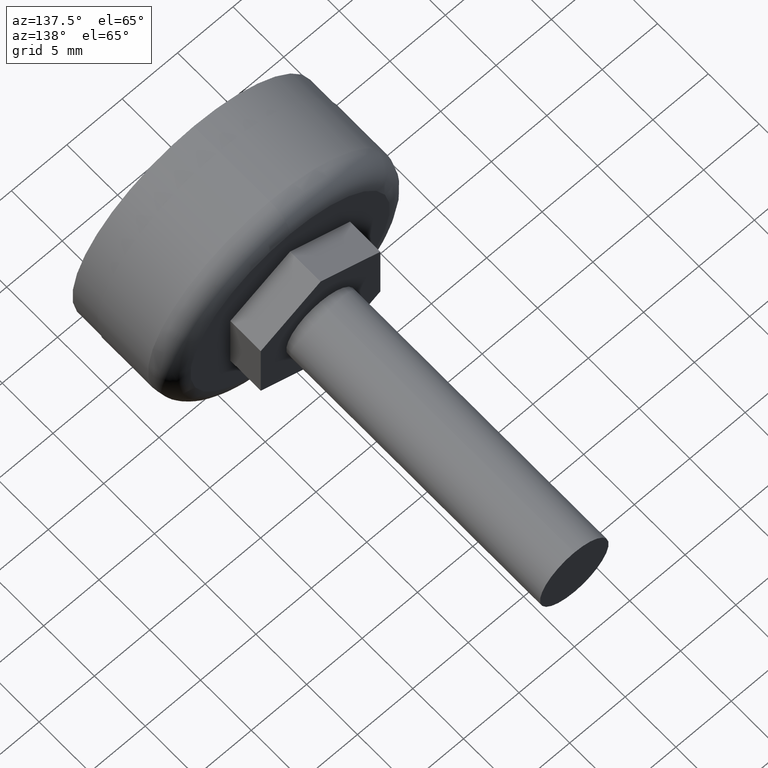
[diagram: clean part render]
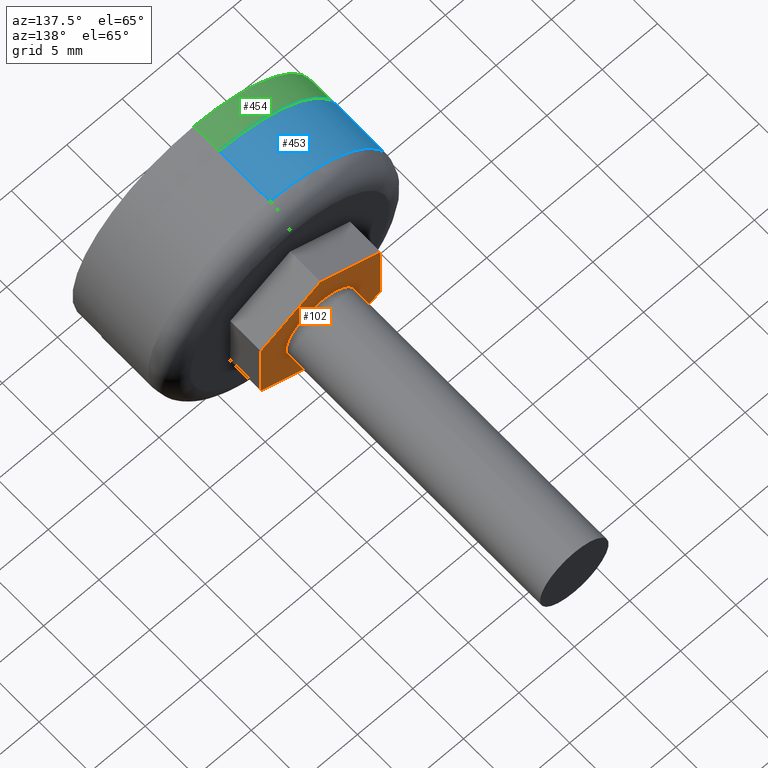
[diagram: same view with three faces highlighted in distinct colors, each labeled with its STEP entity id]
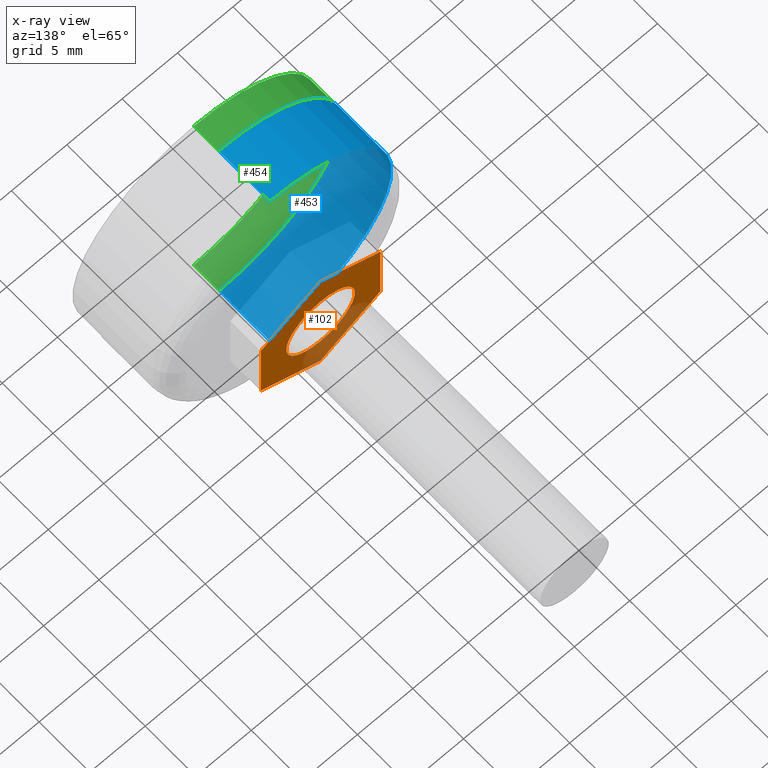
[diagram: x-ray of the same camera — body ghosted, the three highlighted faces saturated]
A machine part, auxiliary view with three faces highlighted in distinct colors.
The next image is the same camera in x-ray (body ghosted, the three faces saturated) — at least one of them is partly hidden behind the body in this view.
Their STEP definitions:

[orange] entity #102 — the highlighted planar face has unit normal (0, 1, -0).
#8 = EDGE_CURVE ( 'NONE', #71, #90, #292, .T. ) ;
#11 = EDGE_CURVE ( 'NONE', #72, #71, #288, .T. ) ;
#19 = AXIS2_PLACEMENT_3D ( 'NONE', #130, #116, #109 ) ;
#21 = EDGE_CURVE ( 'NONE', #77, #68, #285, .T. ) ;
#22 = EDGE_CURVE ( 'NONE', #68, #77, #282, .T. ) ;
#27 = EDGE_CURVE ( 'NONE', #85, #69, #313, .T. ) ;
#28 = AXIS2_PLACEMENT_3D ( 'NONE', #591, #571, #569 ) ;
#35 = EDGE_CURVE ( 'NONE', #69, #72, #291, .T. ) ;
#37 = EDGE_CURVE ( 'NONE', #90, #76, #296, .T. ) ;
#40 = AXIS2_PLACEMENT_3D ( 'NONE', #573, #583, #574 ) ;
#68 = VERTEX_POINT ( 'NONE', #193 ) ;
#69 = VERTEX_POINT ( 'NONE', #187 ) ;
#71 = VERTEX_POINT ( 'NONE', #175 ) ;
#72 = VERTEX_POINT ( 'NONE', #213 ) ;
#76 = VERTEX_POINT ( 'NONE', #217 ) ;
#77 = VERTEX_POINT ( 'NONE', #220 ) ;
#85 = VERTEX_POINT ( 'NONE', #173 ) ;
#90 = VERTEX_POINT ( 'NONE', #215 ) ;
#102 = ADVANCED_FACE ( 'NONE', ( #263, #329 ), #200, .T. ) ;
#106 = CARTESIAN_POINT ( 'NONE',  ( -5.400000000000000400, 10.00000000000000000, 3.117691453623979900 ) ) ;
#109 = DIRECTION ( 'NONE',  ( 0.0000000000000000000, 0.0000000000000000000, 1.000000000000000000 ) ) ;
#116 = DIRECTION ( 'NONE',  ( 0.0000000000000000000, 1.000000000000000000, -0.0000000000000000000 ) ) ;
#130 = CARTESIAN_POINT ( 'NONE',  ( -5.400000000000000400, 10.00000000000000000, -9.353074360871939800 ) ) ;
#135 = DIRECTION ( 'NONE',  ( 0.8660254037844384900, 0.0000000000000000000, 0.5000000000000001100 ) ) ;
#173 = CARTESIAN_POINT ( 'NONE',  ( -7.872804065101680700E-016, 10.00000000000000000, 6.235382907247959800 ) ) ;
#175 = CARTESIAN_POINT ( 'NONE',  ( 3.535262311868472300E-016, 10.00000000000000000, -6.235382907247958100 ) ) ;
#187 = CARTESIAN_POINT ( 'NONE',  ( 5.399999999999999500, 10.00000000000000000, 3.117691453623982600 ) ) ;
#193 = CARTESIAN_POINT ( 'NONE',  ( 0.0000000000000000000, 10.00000000000000200, -3.100000000000000100 ) ) ;
#200 = PLANE ( 'NONE',  #19 ) ;
#213 = CARTESIAN_POINT ( 'NONE',  ( 5.399999999999999500, 10.00000000000000000, -3.117691453623979500 ) ) ;
#215 = CARTESIAN_POINT ( 'NONE',  ( -5.400000000000000400, 10.00000000000000000, -3.117691453623980400 ) ) ;
#217 = CARTESIAN_POINT ( 'NONE',  ( -5.400000000000000400, 10.00000000000000000, 3.117691453623979900 ) ) ;
#220 = CARTESIAN_POINT ( 'NONE',  ( 3.796405077356794900E-016, 10.00000000000000200, 3.100000000000000100 ) ) ;
#263 = FACE_OUTER_BOUND ( 'NONE', #529, .T. ) ;
#273 = ORIENTED_EDGE ( 'NONE', *, *, #22, .F. ) ;
#274 = ORIENTED_EDGE ( 'NONE', *, *, #21, .F. ) ;
#280 = ORIENTED_EDGE ( 'NONE', *, *, #27, .T. ) ;
#282 = CIRCLE ( 'NONE', #28, 3.100000000000000100 ) ;
#285 = CIRCLE ( 'NONE', #40, 3.100000000000000100 ) ;
#288 = LINE ( 'NONE', #586, #337 ) ;
#291 = LINE ( 'NONE', #560, #294 ) ;
#292 = LINE ( 'NONE', #587, #293 ) ;
#293 = VECTOR ( 'NONE', #554, 1000.000000000000100 ) ;
#294 = VECTOR ( 'NONE', #555, 1000.000000000000000 ) ;
#296 = LINE ( 'NONE', #581, #300 ) ;
#300 = VECTOR ( 'NONE', #550, 1000.000000000000000 ) ;
#307 = ORIENTED_EDGE ( 'NONE', *, *, #35, .T. ) ;
#313 = LINE ( 'NONE', #594, #315 ) ;
#315 = VECTOR ( 'NONE', #565, 1000.000000000000100 ) ;
#329 = FACE_BOUND ( 'NONE', #525, .T. ) ;
#337 = VECTOR ( 'NONE', #546, 1000.000000000000200 ) ;
#346 = EDGE_CURVE ( 'NONE', #76, #85, #384, .T. ) ;
#380 = VECTOR ( 'NONE', #135, 1000.000000000000200 ) ;
#384 = LINE ( 'NONE', #106, #380 ) ;
#512 = ORIENTED_EDGE ( 'NONE', *, *, #37, .T. ) ;
#519 = ORIENTED_EDGE ( 'NONE', *, *, #8, .T. ) ;
#525 = EDGE_LOOP ( 'NONE', ( #273, #274 ) ) ;
#529 = EDGE_LOOP ( 'NONE', ( #537, #519, #512, #533, #280, #307 ) ) ;
#533 = ORIENTED_EDGE ( 'NONE', *, *, #346, .T. ) ;
#537 = ORIENTED_EDGE ( 'NONE', *, *, #11, .T. ) ;
#546 = DIRECTION ( 'NONE',  ( -0.8660254037844386000, 0.0000000000000000000, -0.5000000000000000000 ) ) ;
#550 = DIRECTION ( 'NONE',  ( 0.0000000000000000000, 0.0000000000000000000, 1.000000000000000000 ) ) ;
#554 = DIRECTION ( 'NONE',  ( -0.8660254037844387100, 0.0000000000000000000, 0.4999999999999997800 ) ) ;
#555 = DIRECTION ( 'NONE',  ( 0.0000000000000000000, 0.0000000000000000000, -1.000000000000000000 ) ) ;
#560 = CARTESIAN_POINT ( 'NONE',  ( 5.399999999999999500, 10.00000000000000000, 3.117691453623982600 ) ) ;
#565 = DIRECTION ( 'NONE',  ( 0.8660254037844387100, 0.0000000000000000000, -0.4999999999999997200 ) ) ;
#569 = DIRECTION ( 'NONE',  ( 0.0000000000000000000, 0.0000000000000000000, 1.000000000000000000 ) ) ;
#571 = DIRECTION ( 'NONE',  ( 0.0000000000000000000, 1.000000000000000000, -0.0000000000000000000 ) ) ;
#573 = CARTESIAN_POINT ( 'NONE',  ( 0.0000000000000000000, 10.00000000000000200, 0.0000000000000000000 ) ) ;
#574 = DIRECTION ( 'NONE',  ( 0.0000000000000000000, 0.0000000000000000000, 1.000000000000000000 ) ) ;
#581 = CARTESIAN_POINT ( 'NONE',  ( -5.400000000000000400, 10.00000000000000000, -3.117691453623980400 ) ) ;
#583 = DIRECTION ( 'NONE',  ( 0.0000000000000000000, 1.000000000000000000, -0.0000000000000000000 ) ) ;
#586 = CARTESIAN_POINT ( 'NONE',  ( 5.399999999999999500, 10.00000000000000000, -3.117691453623979500 ) ) ;
#587 = CARTESIAN_POINT ( 'NONE',  ( 3.535262311868472300E-016, 10.00000000000000000, -6.235382907247958100 ) ) ;
#591 = CARTESIAN_POINT ( 'NONE',  ( 0.0000000000000000000, 10.00000000000000200, 0.0000000000000000000 ) ) ;
#594 = CARTESIAN_POINT ( 'NONE',  ( -7.872804065101680700E-016, 10.00000000000000000, 6.235382907247959800 ) ) ;

[blue] entity #453 — the highlighted cylindrical surface (partial cylindrical patch) has radius 11 mm, axis along (-0, -1, -0).
#16 = EDGE_CURVE ( 'NONE', #66, #81, #334, .T. ) ;
#38 = EDGE_CURVE ( 'NONE', #79, #70, #295, .T. ) ;
#66 = VERTEX_POINT ( 'NONE', #161 ) ;
#70 = VERTEX_POINT ( 'NONE', #157 ) ;
#79 = VERTEX_POINT ( 'NONE', #199 ) ;
#81 = VERTEX_POINT ( 'NONE', #170 ) ;
#104 = CARTESIAN_POINT ( 'NONE',  ( 0.0000000000000000000, 5.000000000000000000, 0.0000000000000000000 ) ) ;
#107 = DIRECTION ( 'NONE',  ( -0.0000000000000000000, -1.000000000000000000, -0.0000000000000000000 ) ) ;
#118 = DIRECTION ( 'NONE',  ( 0.0000000000000000000, 1.000000000000000000, 0.0000000000000000000 ) ) ;
#123 = DIRECTION ( 'NONE',  ( 0.0000000000000000000, 0.0000000000000000000, 1.000000000000000000 ) ) ;
#128 = CARTESIAN_POINT ( 'NONE',  ( 0.0000000000000000000, 0.0000000000000000000, 0.0000000000000000000 ) ) ;
#141 = DIRECTION ( 'NONE',  ( 0.0000000000000000000, 0.0000000000000000000, 1.000000000000000000 ) ) ;
#157 = CARTESIAN_POINT ( 'NONE',  ( 0.0000000000000000000, 0.0000000000000000000, -11.00000000000000000 ) ) ;
#161 = CARTESIAN_POINT ( 'NONE',  ( 1.347111479062088400E-015, 5.000000000000000000, 11.00000000000000000 ) ) ;
#170 = CARTESIAN_POINT ( 'NONE',  ( 1.347111479062088400E-015, 0.0000000000000000000, 11.00000000000000000 ) ) ;
#199 = CARTESIAN_POINT ( 'NONE',  ( 0.0000000000000000000, 5.000000000000000000, -11.00000000000000000 ) ) ;
#225 = AXIS2_PLACEMENT_3D ( 'NONE', #435, #430, #413 ) ;
#230 = AXIS2_PLACEMENT_3D ( 'NONE', #128, #118, #123 ) ;
#233 = AXIS2_PLACEMENT_3D ( 'NONE', #104, #107, #141 ) ;
#295 = LINE ( 'NONE', #579, #299 ) ;
#299 = VECTOR ( 'NONE', #547, 1000.000000000000000 ) ;
#319 = CIRCLE ( 'NONE', #230, 11.00000000000000000 ) ;
#333 = VECTOR ( 'NONE', #582, 1000.000000000000000 ) ;
#334 = LINE ( 'NONE', #552, #333 ) ;
#343 = EDGE_CURVE ( 'NONE', #70, #81, #319, .T. ) ;
#348 = EDGE_CURVE ( 'NONE', #66, #79, #355, .T. ) ;
#355 = CIRCLE ( 'NONE', #233, 11.00000000000000000 ) ;
#381 = CYLINDRICAL_SURFACE ( 'NONE', #225, 11.00000000000000000 ) ;
#402 = FACE_OUTER_BOUND ( 'NONE', #514, .T. ) ;
#413 = DIRECTION ( 'NONE',  ( 0.0000000000000000000, 0.0000000000000000000, -1.000000000000000000 ) ) ;
#430 = DIRECTION ( 'NONE',  ( -0.0000000000000000000, -1.000000000000000000, -0.0000000000000000000 ) ) ;
#435 = CARTESIAN_POINT ( 'NONE',  ( 0.0000000000000000000, 7.000000000000000000, 0.0000000000000000000 ) ) ;
#453 = ADVANCED_FACE ( 'NONE', ( #402 ), #381, .T. ) ;
#462 = ORIENTED_EDGE ( 'NONE', *, *, #16, .F. ) ;
#470 = ORIENTED_EDGE ( 'NONE', *, *, #38, .T. ) ;
#514 = EDGE_LOOP ( 'NONE', ( #462, #539, #470, #542 ) ) ;
#539 = ORIENTED_EDGE ( 'NONE', *, *, #348, .T. ) ;
#542 = ORIENTED_EDGE ( 'NONE', *, *, #343, .T. ) ;
#547 = DIRECTION ( 'NONE',  ( -0.0000000000000000000, -1.000000000000000000, -0.0000000000000000000 ) ) ;
#552 = CARTESIAN_POINT ( 'NONE',  ( 1.347111479062088400E-015, 7.000000000000000000, 11.00000000000000000 ) ) ;
#579 = CARTESIAN_POINT ( 'NONE',  ( 0.0000000000000000000, 7.000000000000000000, -11.00000000000000000 ) ) ;
#582 = DIRECTION ( 'NONE',  ( -0.0000000000000000000, -1.000000000000000000, -0.0000000000000000000 ) ) ;

[green] entity #454 — the highlighted cylindrical surface (partial cylindrical patch) has radius 10.95 mm, axis along (-0, 1, -0).
#9 = EDGE_CURVE ( 'NONE', #73, #80, #302, .T. ) ;
#12 = AXIS2_PLACEMENT_3D ( 'NONE', #570, #592, #548 ) ;
#15 = EDGE_CURVE ( 'NONE', #94, #80, #286, .T. ) ;
#43 = EDGE_CURVE ( 'NONE', #89, #94, #255, .T. ) ;
#73 = VERTEX_POINT ( 'NONE', #181 ) ;
#80 = VERTEX_POINT ( 'NONE', #162 ) ;
#89 = VERTEX_POINT ( 'NONE', #189 ) ;
#94 = VERTEX_POINT ( 'NONE', #188 ) ;
#146 = DIRECTION ( 'NONE',  ( 0.0000000000000000000, 0.0000000000000000000, -1.000000000000000000 ) ) ;
#147 = CARTESIAN_POINT ( 'NONE',  ( 0.0000000000000000000, -2.500000000000000000, 0.0000000000000000000 ) ) ;
#149 = DIRECTION ( 'NONE',  ( 0.0000000000000000000, -1.000000000000000000, 0.0000000000000000000 ) ) ;
#162 = CARTESIAN_POINT ( 'NONE',  ( 1.340988245066351700E-015, 0.0000000000000000000, -10.94999999999999900 ) ) ;
#181 = CARTESIAN_POINT ( 'NONE',  ( 1.340988245066351700E-015, -2.500000000000000000, -10.94999999999999900 ) ) ;
#188 = CARTESIAN_POINT ( 'NONE',  ( 0.0000000000000000000, 0.0000000000000000000, 10.94999999999999900 ) ) ;
#189 = CARTESIAN_POINT ( 'NONE',  ( 0.0000000000000000000, -2.500000000000000000, 10.94999999999999900 ) ) ;
#197 = DIRECTION ( 'NONE',  ( -0.0000000000000000000, 1.000000000000000000, -0.0000000000000000000 ) ) ;
#209 = CARTESIAN_POINT ( 'NONE',  ( 0.0000000000000000000, -2.500000000000000000, 10.94999999999999900 ) ) ;
#221 = AXIS2_PLACEMENT_3D ( 'NONE', #422, #418, #433 ) ;
#235 = AXIS2_PLACEMENT_3D ( 'NONE', #147, #149, #146 ) ;
#253 = VECTOR ( 'NONE', #197, 1000.000000000000000 ) ;
#255 = LINE ( 'NONE', #209, #253 ) ;
#259 = VECTOR ( 'NONE', #559, 1000.000000000000000 ) ;
#286 = CIRCLE ( 'NONE', #12, 10.94999999999999900 ) ;
#298 = CIRCLE ( 'NONE', #235, 10.94999999999999900 ) ;
#302 = LINE ( 'NONE', #568, #259 ) ;
#344 = EDGE_CURVE ( 'NONE', #89, #73, #298, .T. ) ;
#362 = FACE_OUTER_BOUND ( 'NONE', #504, .T. ) ;
#371 = CYLINDRICAL_SURFACE ( 'NONE', #221, 10.94999999999999900 ) ;
#418 = DIRECTION ( 'NONE',  ( -0.0000000000000000000, 1.000000000000000000, -0.0000000000000000000 ) ) ;
#422 = CARTESIAN_POINT ( 'NONE',  ( 0.0000000000000000000, -2.500000000000000000, 0.0000000000000000000 ) ) ;
#433 = DIRECTION ( 'NONE',  ( 0.0000000000000000000, 0.0000000000000000000, 1.000000000000000000 ) ) ;
#454 = ADVANCED_FACE ( 'NONE', ( #362 ), #371, .T. ) ;
#468 = ORIENTED_EDGE ( 'NONE', *, *, #43, .T. ) ;
#504 = EDGE_LOOP ( 'NONE', ( #518, #536, #468, #535 ) ) ;
#518 = ORIENTED_EDGE ( 'NONE', *, *, #9, .F. ) ;
#535 = ORIENTED_EDGE ( 'NONE', *, *, #15, .T. ) ;
#536 = ORIENTED_EDGE ( 'NONE', *, *, #344, .F. ) ;
#548 = DIRECTION ( 'NONE',  ( 0.0000000000000000000, 0.0000000000000000000, 1.000000000000000000 ) ) ;
#559 = DIRECTION ( 'NONE',  ( -0.0000000000000000000, 1.000000000000000000, -0.0000000000000000000 ) ) ;
#568 = CARTESIAN_POINT ( 'NONE',  ( 1.340988245066351700E-015, -2.500000000000000000, -10.94999999999999900 ) ) ;
#570 = CARTESIAN_POINT ( 'NONE',  ( 0.0000000000000000000, 0.0000000000000000000, 0.0000000000000000000 ) ) ;
#592 = DIRECTION ( 'NONE',  ( -0.0000000000000000000, -1.000000000000000000, -0.0000000000000000000 ) ) ;